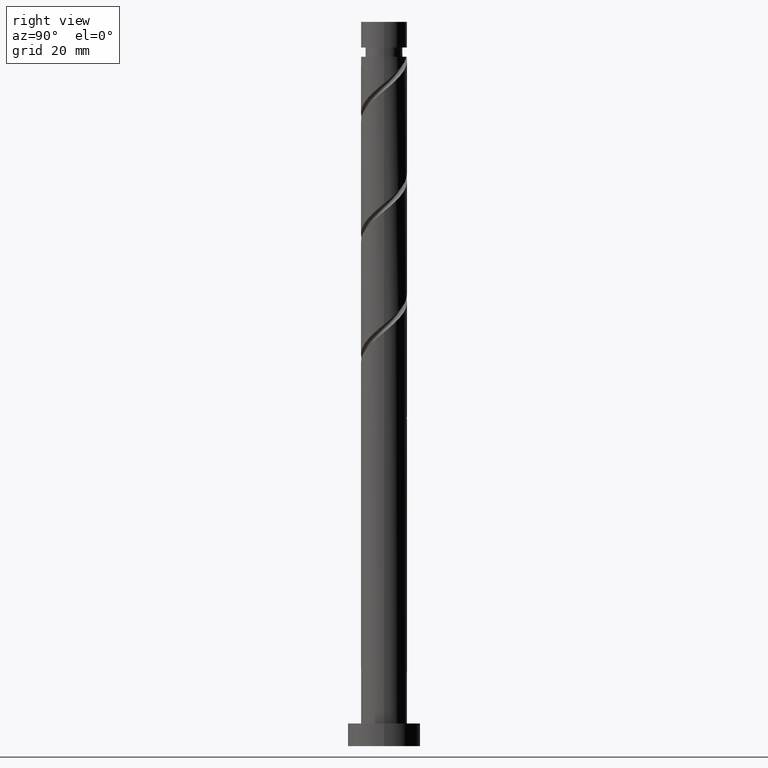
[diagram: clean part render]
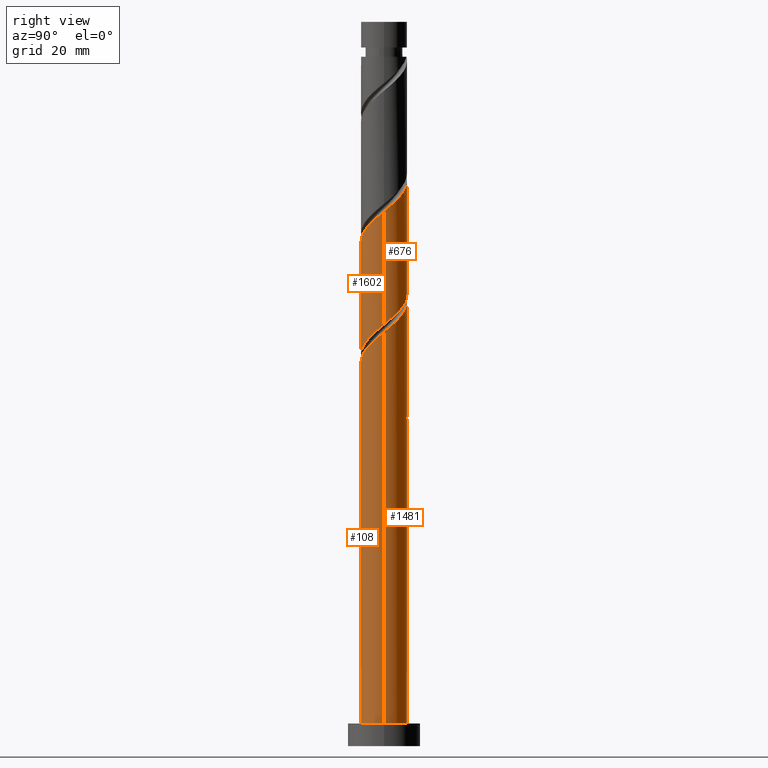
[diagram: same view with one multi-face feature highlighted, each face labeled with its STEP entity id]
A machine part, right view. The highlighted faces form ONE feature: a constant-radius fillet chain: 4 tangent blend faces with common blend radius 5.1 mm. The faces share edges in the B-rep.
Their STEP definitions:
[1] entity #676 (Cylinder):
#7 = CARTESIAN_POINT ( 'NONE',  ( 3.693490123188847729, 3.592466363838562327, 121.3970712016373454 ) ) ;
#20 = CARTESIAN_POINT ( 'NONE',  ( -4.967940086286696477, 1.153070379060097128, 130.4879802925464674 ) ) ;
#25 = ORIENTED_EDGE ( 'NONE', *, *, #1310, .F. ) ;
#29 = CARTESIAN_POINT ( 'NONE',  ( 5.100000000000005862, 3.305457375472709863E-15, 118.1233742980940917 ) ) ;
#49 = CARTESIAN_POINT ( 'NONE',  ( -2.381876442926736281, 4.509619120350490284, 126.8516166561828271 ) ) ;
#64 = DIRECTION ( 'NONE',  ( -0.000000000000000000, -0.000000000000000000, -1.000000000000000000 ) ) ;
#78 = EDGE_CURVE ( 'NONE', #1302, #1409, #664, .T. ) ;
#81 = CARTESIAN_POINT ( 'NONE',  ( 3.030261786617840070, 4.167156988879663793, 97.15464695921313876 ) ) ;
#89 = CARTESIAN_POINT ( 'NONE',  ( -4.802694060801206533, 1.715846659333174040, 105.0334348380009999 ) ) ;
#90 = CYLINDRICAL_SURFACE ( 'NONE', #693, 5.099999999999999645 ) ;
#97 = CARTESIAN_POINT ( 'NONE',  ( 0.2962832724618764124, 5.143918748178693434, 99.57888938345556085 ) ) ;
#115 = CARTESIAN_POINT ( 'NONE',  ( 5.099999999999997868, -5.892987357177625303E-15, 93.15561659002915462 ) ) ;
#174 = CARTESIAN_POINT ( 'NONE',  ( 5.100000000000005862, 0.1467551852714993887, 118.2454723028122743 ) ) ;
#214 = CARTESIAN_POINT ( 'NONE',  ( -2.531763087263166678, 4.487522650124081913, 102.0031318076979971 ) ) ;
#263 = CARTESIAN_POINT ( 'NONE',  ( 4.555992555365316221, 2.406369817974962633, 120.1849499895161415 ) ) ;
#299 = CARTESIAN_POINT ( 'NONE',  ( -5.100000000000005862, -3.544766506728652250E-15, 131.4567076314274061 ) ) ;
#335 = VECTOR ( 'NONE', #64, 1000.000000000000000 ) ;
#354 = CARTESIAN_POINT ( 'NONE',  ( 4.081538685709031888, 3.144634449735860926, 95.94252574709193482 ) ) ;
#404 = CARTESIAN_POINT ( 'NONE',  ( -5.100000000000004974, 0.5840975296641316428, 130.9707476784560640 ) ) ;
#411 = CARTESIAN_POINT ( 'NONE',  ( -1.733491099235630939, 4.852081251821313224, 126.2455560501222180 ) ) ;
#443 = EDGE_CURVE ( 'NONE', #881, #1409, #1309, .T. ) ;
#455 = CARTESIAN_POINT ( 'NONE',  ( -5.049395566237104838, 1.025323500691385892, 105.6394954440616232 ) ) ;
#467 = CARTESIAN_POINT ( 'NONE',  ( -3.112626605226002319, 4.039994506981321010, 102.6091924137585778 ) ) ;
#476 = CARTESIAN_POINT ( 'NONE',  ( 2.381876442926734505, 4.509619120350484067, 97.76070756527374783 ) ) ;
#481 = CARTESIAN_POINT ( 'NONE',  ( -5.099999999999999645, 0.000000000000000000, 160.0000000000000000 ) ) ;
#492 =( BOUNDED_CURVE ( )  B_SPLINE_CURVE ( 2, ( #29, #174, #891, #1275, #1566, #263, #1012, #7, #538, #1027, #784, #1295, #1305, #519, #1315, #411, #49, #1428, #1018, #1438, #1187, #1412, #20, #404, #299 ),
 .UNSPECIFIED., .F., .T. ) 
 B_SPLINE_CURVE_WITH_KNOTS ( ( 3, 2, 2, 2, 2, 2, 2, 2, 2, 2, 2, 2, 3 ),
 ( 0.4295252162417513841, 0.4318181818181817677, 0.4431818181818182323, 0.4545454545454545858, 0.4659090909090909394, 0.4772727272727272929, 0.4886363636363636465, 0.5000000000000000000, 0.5113636363636363535, 0.5227272727272727071, 0.5340909090909091717, 0.5454545454545454142, 0.5545252162417513286 ),
 .UNSPECIFIED. ) 
 CURVE ( )  GEOMETRIC_REPRESENTATION_ITEM ( )  RATIONAL_B_SPLINE_CURVE ( ( 0.9061101570135599026, 0.9072237824201421219, 0.9090909090909194967, 0.8998376744372218461, 0.9090909090909194967, 0.8998376744372218461, 0.9090909090909194967, 0.8998376744372218461, 0.9090909090909194967, 0.8998376744372218461, 0.9090909090909194967, 0.8998376744372218461, 0.9090909090909194967, 0.8998376744372218461, 0.9090909090909194967, 0.8998376744372218461, 0.9090909090909194967, 0.8998376744372218461, 0.9090909090909194967, 0.8998376744372218461, 0.9090909090909194967, 0.8998376744372218461, 0.9090909090909194967, 0.9017048011079993319, 0.9061101570135599026 ) ) 
 REPRESENTATION_ITEM ( '' )  );
#519 = CARTESIAN_POINT ( 'NONE',  ( -0.2962832724618752467, 5.143918748178697875, 125.0334348380009999 ) ) ;
#538 = CARTESIAN_POINT ( 'NONE',  ( 3.112626605226006760, 4.039994506981325451, 122.0031318076979829 ) ) ;
#582 = CARTESIAN_POINT ( 'NONE',  ( 4.967940086286690260, 1.153070379060092687, 94.12434392891007917 ) ) ;
#598 = DIRECTION ( 'NONE',  ( -1.000000000000000000, 0.000000000000000000, 0.000000000000000000 ) ) ;
#614 = LINE ( 'NONE', #481, #1350 ) ;
#656 = ORIENTED_EDGE ( 'NONE', *, *, #1069, .F. ) ;
#664 =( BOUNDED_CURVE ( )  B_SPLINE_CURVE ( 2, ( #1482, #1613, #1230, #455, #89, #1490, #946, #1475, #467, #214, #722, #1225, #1238, #97, #1098, #1636, #476, #81, #1500, #354, #1371, #745, #582, #1067, #115 ),
 .UNSPECIFIED., .F., .T. ) 
 B_SPLINE_CURVE_WITH_KNOTS ( ( 3, 2, 2, 2, 2, 2, 2, 2, 2, 2, 2, 2, 3 ),
 ( 0.6795252162417514397, 0.6818181818181817677, 0.6931818181818182323, 0.7045454545454545858, 0.7159090909090909394, 0.7272727272727272929, 0.7386363636363636465, 0.7500000000000000000, 0.7613636363636363535, 0.7727272727272727071, 0.7840909090909090606, 0.7954545454545454142, 0.8045252162417513286 ),
 .UNSPECIFIED. ) 
 CURVE ( )  GEOMETRIC_REPRESENTATION_ITEM ( )  RATIONAL_B_SPLINE_CURVE ( ( 0.9061101570135546845, 0.9072237824201367928, 0.9090909090909141677, 0.8998376744372164060, 0.9090909090909141677, 0.8998376744372164060, 0.9090909090909141677, 0.8998376744372164060, 0.9090909090909141677, 0.8998376744372164060, 0.9090909090909141677, 0.8998376744372164060, 0.9090909090909141677, 0.8998376744372164060, 0.9090909090909141677, 0.8998376744372164060, 0.9090909090909141677, 0.8998376744372164060, 0.9090909090909141677, 0.8998376744372164060, 0.9090909090909141677, 0.8998376744372164060, 0.9090909090909141677, 0.9017048011079938918, 0.9061101570135544625 ) ) 
 REPRESENTATION_ITEM ( '' )  );
#676 = ADVANCED_FACE ( 'NONE', ( #1099 ), #90, .T. ) ;
#693 = AXIS2_PLACEMENT_3D ( 'NONE', #1111, #948, #598 ) ;
#722 = CARTESIAN_POINT ( 'NONE',  ( -1.848345375122717460, 4.753274594872723746, 101.3970712016373739 ) ) ;
#745 = CARTESIAN_POINT ( 'NONE',  ( 4.802153594329293007, 1.867352329335633776, 94.73040453497071667 ) ) ;
#784 = CARTESIAN_POINT ( 'NONE',  ( 1.848345375122719680, 4.753274594872730852, 123.2152530198192011 ) ) ;
#881 = VERTEX_POINT ( 'NONE', #1489 ) ;
#891 = CARTESIAN_POINT ( 'NONE',  ( 5.091561072240601504, 0.2932675359534151482, 118.3667681713343285 ) ) ;
#946 = CARTESIAN_POINT ( 'NONE',  ( -4.124741339277075092, 2.999418090906761147, 103.8213136258797817 ) ) ;
#948 = DIRECTION ( 'NONE',  ( -0.000000000000000000, -0.000000000000000000, -1.000000000000000000 ) ) ;
#1012 = CARTESIAN_POINT ( 'NONE',  ( 4.124741339277080421, 2.999418090906763368, 120.7910105955767648 ) ) ;
#1018 = CARTESIAN_POINT ( 'NONE',  ( -3.555900236163439310, 3.655895719307768132, 128.0637378683040311 ) ) ;
#1027 = CARTESIAN_POINT ( 'NONE',  ( 2.531763087263168899, 4.487522650124085466, 122.6091924137585636 ) ) ;
#1067 = CARTESIAN_POINT ( 'NONE',  ( 5.100000000000001421, 0.5840975296641219838, 93.64157654300048250 ) ) ;
#1069 = EDGE_CURVE ( 'NONE', #1102, #1302, #614, .T. ) ;
#1098 = CARTESIAN_POINT ( 'NONE',  ( 1.014887185848754259, 4.997999999999999332, 98.97282877739493756 ) ) ;
#1099 = FACE_OUTER_BOUND ( 'NONE', #1201, .T. ) ;
#1102 = VERTEX_POINT ( 'NONE', #1107 ) ;
#1107 = CARTESIAN_POINT ( 'NONE',  ( -5.100000000000005862, -3.544766506728652250E-15, 131.4567076314274061 ) ) ;
#1111 = CARTESIAN_POINT ( 'NONE',  ( 0.000000000000000000, 0.000000000000000000, 160.0000000000000000 ) ) ;
#1167 = CARTESIAN_POINT ( 'NONE',  ( -5.099999999999997868, 4.771225804415387008E-15, 106.4889499233624832 ) ) ;
#1187 = CARTESIAN_POINT ( 'NONE',  ( -4.441846140019166889, 2.505993389535752236, 129.2758590804252208 ) ) ;
#1201 = EDGE_LOOP ( 'NONE', ( #25, #1600, #1533, #656 ) ) ;
#1225 = CARTESIAN_POINT ( 'NONE',  ( -1.164927662982269352, 5.019026539621367355, 100.7910105955767790 ) ) ;
#1230 = CARTESIAN_POINT ( 'NONE',  ( -5.091561072240594399, 0.2932675359534164805, 106.2455560501222180 ) ) ;
#1238 = CARTESIAN_POINT ( 'NONE',  ( -0.4343221952601962199, 5.081472643900029063, 100.1849499895161557 ) ) ;
#1275 = CARTESIAN_POINT ( 'NONE',  ( 5.049395566237108390, 1.025323500691385448, 118.9728287773949091 ) ) ;
#1295 = CARTESIAN_POINT ( 'NONE',  ( 1.164927662982271572, 5.019026539621373573, 123.8213136258797675 ) ) ;
#1302 = VERTEX_POINT ( 'NONE', #1167 ) ;
#1305 = CARTESIAN_POINT ( 'NONE',  ( 0.4343221952601982183, 5.081472643900035280, 124.4273742319403766 ) ) ;
#1309 = LINE ( 'NONE', #1609, #335 ) ;
#1310 = EDGE_CURVE ( 'NONE', #881, #1102, #492, .T. ) ;
#1315 = CARTESIAN_POINT ( 'NONE',  ( -1.014887185848752260, 4.998000000000005549, 125.6394954440616090 ) ) ;
#1350 = VECTOR ( 'NONE', #1528, 1000.000000000000000 ) ;
#1371 = CARTESIAN_POINT ( 'NONE',  ( 4.441846140019162448, 2.505993389535748683, 95.33646514103131153 ) ) ;
#1409 = VERTEX_POINT ( 'NONE', #1595 ) ;
#1412 = CARTESIAN_POINT ( 'NONE',  ( -4.802153594329296560, 1.867352329335639105, 129.8819196864858156 ) ) ;
#1428 = CARTESIAN_POINT ( 'NONE',  ( -3.030261786617843178, 4.167156988879668233, 127.4576772622434078 ) ) ;
#1438 = CARTESIAN_POINT ( 'NONE',  ( -4.081538685709036329, 3.144634449735864923, 128.6697984743646543 ) ) ;
#1475 = CARTESIAN_POINT ( 'NONE',  ( -3.693490123188840624, 3.592466363838560550, 103.2152530198191869 ) ) ;
#1482 = CARTESIAN_POINT ( 'NONE',  ( -5.099999999999997868, 4.771225804415387797E-15, 106.4889499233624832 ) ) ;
#1489 = CARTESIAN_POINT ( 'NONE',  ( 5.100000000000005862, 3.305457375472709863E-15, 118.1233742980940775 ) ) ;
#1490 = CARTESIAN_POINT ( 'NONE',  ( -4.555992555365308228, 2.406369817974963077, 104.4273742319404192 ) ) ;
#1500 = CARTESIAN_POINT ( 'NONE',  ( 3.555900236163433981, 3.655895719307762359, 96.54858635315251547 ) ) ;
#1528 = DIRECTION ( 'NONE',  ( -0.000000000000000000, -0.000000000000000000, -1.000000000000000000 ) ) ;
#1533 = ORIENTED_EDGE ( 'NONE', *, *, #78, .F. ) ;
#1566 = CARTESIAN_POINT ( 'NONE',  ( 4.802694060801213638, 1.715846659333174484, 119.5788893834555466 ) ) ;
#1595 = CARTESIAN_POINT ( 'NONE',  ( 5.099999999999997868, -5.892987357177625303E-15, 93.15561659002914041 ) ) ;
#1600 = ORIENTED_EDGE ( 'NONE', *, *, #443, .T. ) ;
#1609 = CARTESIAN_POINT ( 'NONE',  ( 5.099999999999999645, 6.245698675651500839E-16, 160.0000000000000000 ) ) ;
#1613 = CARTESIAN_POINT ( 'NONE',  ( -5.099999999999997868, 0.1467551852715043292, 106.3668519186442722 ) ) ;
#1636 = CARTESIAN_POINT ( 'NONE',  ( 1.733491099235630495, 4.852081251821307895, 98.36676817133435691 ) ) ;
[2] entity #1602 (Cylinder):
#2 = EDGE_LOOP ( 'NONE', ( #388, #675, #294, #1149 ) ) ;
#64 = DIRECTION ( 'NONE',  ( -0.000000000000000000, -0.000000000000000000, -1.000000000000000000 ) ) ;
#67 = CARTESIAN_POINT ( 'NONE',  ( -5.100000000000005862, -3.544766506728652250E-15, 104.7900409647607205 ) ) ;
#84 = CARTESIAN_POINT ( 'NONE',  ( -2.531763087263170231, -4.487522650124083690, 109.2758590804252208 ) ) ;
#86 = CARTESIAN_POINT ( 'NONE',  ( -1.014887185848753592, -4.997999999999999332, 85.63949544406160896 ) ) ;
#101 = DIRECTION ( 'NONE',  ( -1.000000000000000000, 0.000000000000000000, 0.000000000000000000 ) ) ;
#112 = CARTESIAN_POINT ( 'NONE',  ( -4.441846140019162448, -2.505993389535748239, 82.00313180769796872 ) ) ;
#188 = CARTESIAN_POINT ( 'NONE',  ( 5.100000000000005862, 3.305457375472709863E-15, 118.1233742980940917 ) ) ;
#197 = CARTESIAN_POINT ( 'NONE',  ( -4.555992555365313557, -2.406369817974963965, 106.8516166561827987 ) ) ;
#200 = LINE ( 'NONE', #709, #719 ) ;
#210 = VERTEX_POINT ( 'NONE', #415 ) ;
#219 = CARTESIAN_POINT ( 'NONE',  ( -4.802694060801213638, -1.715846659333174928, 106.2455560501222038 ) ) ;
#239 = CARTESIAN_POINT ( 'NONE',  ( -3.030261786617840070, -4.167156988879664681, 83.82131362587981016 ) ) ;
#275 = CARTESIAN_POINT ( 'NONE',  ( 5.099999999999997868, -5.892987357177625303E-15, 93.15561659002915462 ) ) ;
#284 = EDGE_CURVE ( 'NONE', #1409, #1050, #1399, .T. ) ;
#294 = ORIENTED_EDGE ( 'NONE', *, *, #625, .T. ) ;
#300 = CARTESIAN_POINT ( 'NONE',  ( 4.124741339277075092, -2.999418090906761147, 90.48798029254642472 ) ) ;
#308 = CARTESIAN_POINT ( 'NONE',  ( 3.030261786617843178, -4.167156988879668233, 114.1243439289100934 ) ) ;
#321 = CARTESIAN_POINT ( 'NONE',  ( 4.967940086286696477, -1.153070379060097128, 117.1546469592131103 ) ) ;
#328 = CARTESIAN_POINT ( 'NONE',  ( 3.555900236163439310, -3.655895719307768132, 114.7304045349707025 ) ) ;
#330 = CARTESIAN_POINT ( 'NONE',  ( -2.381876442926734061, -4.509619120350484067, 84.42737423194039081 ) ) ;
#335 = VECTOR ( 'NONE', #64, 1000.000000000000000 ) ;
#358 = CARTESIAN_POINT ( 'NONE',  ( -5.099999999999997868, 4.771225804415387008E-15, 79.82228325669582603 ) ) ;
#388 = ORIENTED_EDGE ( 'NONE', *, *, #443, .F. ) ;
#415 = CARTESIAN_POINT ( 'NONE',  ( -5.100000000000005862, -3.544766506728652250E-15, 104.7900409647607205 ) ) ;
#421 = CARTESIAN_POINT ( 'NONE',  ( 5.099999999999998757, -0.1467551852714982230, 93.03351858531092944 ) ) ;
#443 = EDGE_CURVE ( 'NONE', #881, #1409, #1309, .T. ) ;
#594 = CARTESIAN_POINT ( 'NONE',  ( -4.124741339277079533, -2.999418090906764256, 107.4576772622434504 ) ) ;
#620 = CARTESIAN_POINT ( 'NONE',  ( -5.099999999999997868, 4.771225804415387008E-15, 79.82228325669582603 ) ) ;
#625 = EDGE_CURVE ( 'NONE', #210, #1050, #200, .T. ) ;
#628 = CARTESIAN_POINT ( 'NONE',  ( -5.100000000000000533, -0.5840975296641237602, 80.30824320966715391 ) ) ;
#661 = CARTESIAN_POINT ( 'NONE',  ( 4.555992555365308228, -2.406369817974962633, 91.09404089860707643 ) ) ;
#675 = ORIENTED_EDGE ( 'NONE', *, *, #1463, .F. ) ;
#703 = CARTESIAN_POINT ( 'NONE',  ( 2.381876442926735837, -4.509619120350491173, 113.5182833228494843 ) ) ;
#709 = CARTESIAN_POINT ( 'NONE',  ( -5.099999999999999645, 0.000000000000000000, 160.0000000000000000 ) ) ;
#719 = VECTOR ( 'NONE', #1209, 1000.000000000000000 ) ;
#725 = CARTESIAN_POINT ( 'NONE',  ( -1.848345375122721013, -4.753274594872729075, 109.8819196864858299 ) ) ;
#748 = CARTESIAN_POINT ( 'NONE',  ( 0.000000000000000000, 0.000000000000000000, 160.0000000000000000 ) ) ;
#803 = CARTESIAN_POINT ( 'NONE',  ( 3.112626605226001431, -4.039994506981321010, 89.27585908042522078 ) ) ;
#807 = CARTESIAN_POINT ( 'NONE',  ( 4.441846140019166889, -2.505993389535752236, 115.9425257470919206 ) ) ;
#814 = CARTESIAN_POINT ( 'NONE',  ( 1.733491099235630051, -4.852081251821313224, 112.9122227167888752 ) ) ;
#817 = CARTESIAN_POINT ( 'NONE',  ( 0.4343221952601947766, -5.081472643900029951, 86.85161665618281290 ) ) ;
#828 = CARTESIAN_POINT ( 'NONE',  ( 5.100000000000007638, -0.5840975296641219838, 117.6374143451227781 ) ) ;
#834 = CARTESIAN_POINT ( 'NONE',  ( -5.049395566237108390, -1.025323500691385892, 105.6394954440616090 ) ) ;
#881 = VERTEX_POINT ( 'NONE', #1489 ) ;
#922 = CARTESIAN_POINT ( 'NONE',  ( 0.2962832724618759683, -5.143918748178697875, 111.7001015046676571 ) ) ;
#941 = CARTESIAN_POINT ( 'NONE',  ( 1.014887185848752926, -4.998000000000005549, 112.3061621107282946 ) ) ;
#976 = CARTESIAN_POINT ( 'NONE',  ( -4.802153594329291231, -1.867352329335635774, 81.39707120163738807 ) ) ;
#980 =( BOUNDED_CURVE ( )  B_SPLINE_CURVE ( 2, ( #67, #1615, #1083, #834, #219, #197, #594, #1053, #1447, #84, #725, #1611, #1320, #922, #941, #814, #703, #308, #328, #1063, #807, #1462, #321, #828, #188 ),
 .UNSPECIFIED., .F., .T. ) 
 B_SPLINE_CURVE_WITH_KNOTS ( ( 3, 2, 2, 2, 2, 2, 2, 2, 2, 2, 2, 2, 3 ),
 ( 0.3045252162417514397, 0.3068181818181817677, 0.3181818181818182323, 0.3295454545454545858, 0.3409090909090909394, 0.3522727272727272929, 0.3636363636363636465, 0.3750000000000000000, 0.3863636363636363535, 0.3977272727272727071, 0.4090909090909090606, 0.4204545454545454142, 0.4295252162417513841 ),
 .UNSPECIFIED. ) 
 CURVE ( )  GEOMETRIC_REPRESENTATION_ITEM ( )  RATIONAL_B_SPLINE_CURVE ( ( 0.9061101570135600136, 0.9072237824201421219, 0.9090909090909194967, 0.8998376744372218461, 0.9090909090909194967, 0.8998376744372218461, 0.9090909090909194967, 0.8998376744372218461, 0.9090909090909194967, 0.8998376744372218461, 0.9090909090909194967, 0.8998376744372218461, 0.9090909090909194967, 0.8998376744372218461, 0.9090909090909194967, 0.8998376744372218461, 0.9090909090909194967, 0.8998376744372218461, 0.9090909090909194967, 0.8998376744372218461, 0.9090909090909194967, 0.8998376744372218461, 0.9090909090909194967, 0.9017048011079993319, 0.9061101570135599026 ) ) 
 REPRESENTATION_ITEM ( '' )  );
#1020 = CARTESIAN_POINT ( 'NONE',  ( 4.802694060801206533, -1.715846659333174262, 91.70010150466767129 ) ) ;
#1050 = VERTEX_POINT ( 'NONE', #358 ) ;
#1053 = CARTESIAN_POINT ( 'NONE',  ( -3.693490123188845509, -3.592466363838564103, 108.0637378683040026 ) ) ;
#1063 = CARTESIAN_POINT ( 'NONE',  ( 4.081538685709036329, -3.144634449735864923, 115.3364651410312973 ) ) ;
#1083 = CARTESIAN_POINT ( 'NONE',  ( -5.091561072240601504, -0.2932675359534157589, 105.0334348380009857 ) ) ;
#1088 = AXIS2_PLACEMENT_3D ( 'NONE', #748, #1514, #101 ) ;
#1103 = FACE_OUTER_BOUND ( 'NONE', #2, .T. ) ;
#1114 = CYLINDRICAL_SURFACE ( 'NONE', #1088, 5.099999999999999645 ) ;
#1149 = ORIENTED_EDGE ( 'NONE', *, *, #284, .F. ) ;
#1156 = CARTESIAN_POINT ( 'NONE',  ( 3.693490123188842400, -3.592466363838560550, 89.88191968648587249 ) ) ;
#1209 = DIRECTION ( 'NONE',  ( -0.000000000000000000, -0.000000000000000000, -1.000000000000000000 ) ) ;
#1264 = CARTESIAN_POINT ( 'NONE',  ( -3.555900236163435313, -3.655895719307761471, 83.21525301981917266 ) ) ;
#1287 = CARTESIAN_POINT ( 'NONE',  ( 5.049395566237104838, -1.025323500691386558, 92.30616211072829458 ) ) ;
#1309 = LINE ( 'NONE', #1609, #335 ) ;
#1320 = CARTESIAN_POINT ( 'NONE',  ( -0.4343221952601974967, -5.081472643900035280, 111.0940408986070480 ) ) ;
#1329 = CARTESIAN_POINT ( 'NONE',  ( -0.2962832724618777447, -5.143918748178693434, 86.24555605012226067 ) ) ;
#1399 =( BOUNDED_CURVE ( )  B_SPLINE_CURVE ( 2, ( #275, #421, #1439, #1287, #1020, #661, #300, #1156, #803, #1589, #1559, #1420, #817, #1329, #86, #1473, #330, #239, #1264, #1401, #112, #976, #1660, #628, #620 ),
 .UNSPECIFIED., .F., .T. ) 
 B_SPLINE_CURVE_WITH_KNOTS ( ( 3, 2, 2, 2, 2, 2, 2, 2, 2, 2, 2, 2, 3 ),
 ( 0.8045252162417513286, 0.8068181818181817677, 0.8181818181818182323, 0.8295454545454545858, 0.8409090909090909394, 0.8522727272727272929, 0.8636363636363636465, 0.8750000000000000000, 0.8863636363636363535, 0.8977272727272727071, 0.9090909090909090606, 0.9204545454545454142, 0.9295252162417513286 ),
 .UNSPECIFIED. ) 
 CURVE ( )  GEOMETRIC_REPRESENTATION_ITEM ( )  RATIONAL_B_SPLINE_CURVE ( ( 0.9061101570135544625, 0.9072237824201366818, 0.9090909090909141677, 0.8998376744372164060, 0.9090909090909141677, 0.8998376744372164060, 0.9090909090909141677, 0.8998376744372164060, 0.9090909090909141677, 0.8998376744372164060, 0.9090909090909141677, 0.8998376744372164060, 0.9090909090909141677, 0.8998376744372164060, 0.9090909090909141677, 0.8998376744372164060, 0.9090909090909141677, 0.8998376744372164060, 0.9090909090909141677, 0.8998376744372164060, 0.9090909090909141677, 0.8998376744372164060, 0.9090909090909141677, 0.9017048011079938918, 0.9061101570135544625 ) ) 
 REPRESENTATION_ITEM ( '' )  );
#1401 = CARTESIAN_POINT ( 'NONE',  ( -4.081538685709034553, -3.144634449735860038, 82.60919241375859201 ) ) ;
#1409 = VERTEX_POINT ( 'NONE', #1595 ) ;
#1420 = CARTESIAN_POINT ( 'NONE',  ( 1.164927662982270240, -5.019026539621367355, 87.45767726224347882 ) ) ;
#1439 = CARTESIAN_POINT ( 'NONE',  ( 5.091561072240594399, -0.2932675359534172022, 92.91222271678884681 ) ) ;
#1447 = CARTESIAN_POINT ( 'NONE',  ( -3.112626605226007204, -4.039994506981324562, 108.6697984743646401 ) ) ;
#1462 = CARTESIAN_POINT ( 'NONE',  ( 4.802153594329298336, -1.867352329335637995, 116.5485863531525155 ) ) ;
#1463 = EDGE_CURVE ( 'NONE', #210, #881, #980, .T. ) ;
#1473 = CARTESIAN_POINT ( 'NONE',  ( -1.733491099235629829, -4.852081251821307895, 85.03343483800099989 ) ) ;
#1489 = CARTESIAN_POINT ( 'NONE',  ( 5.100000000000005862, 3.305457375472709863E-15, 118.1233742980940775 ) ) ;
#1514 = DIRECTION ( 'NONE',  ( -0.000000000000000000, -0.000000000000000000, -1.000000000000000000 ) ) ;
#1559 = CARTESIAN_POINT ( 'NONE',  ( 1.848345375122717460, -4.753274594872723746, 88.06373786830401684 ) ) ;
#1589 = CARTESIAN_POINT ( 'NONE',  ( 2.531763087263165790, -4.487522650124081913, 88.66979847436466855 ) ) ;
#1595 = CARTESIAN_POINT ( 'NONE',  ( 5.099999999999997868, -5.892987357177625303E-15, 93.15561659002914041 ) ) ;
#1602 = ADVANCED_FACE ( 'NONE', ( #1103 ), #1114, .T. ) ;
#1609 = CARTESIAN_POINT ( 'NONE',  ( 5.099999999999999645, 6.245698675651500839E-16, 160.0000000000000000 ) ) ;
#1611 = CARTESIAN_POINT ( 'NONE',  ( -1.164927662982270684, -5.019026539621372685, 110.4879802925464389 ) ) ;
#1615 = CARTESIAN_POINT ( 'NONE',  ( -5.100000000000005862, -0.1467551852715033023, 104.9121389694789173 ) ) ;
#1660 = CARTESIAN_POINT ( 'NONE',  ( -4.967940086286689372, -1.153070379060094242, 80.79101059557676479 ) ) ;
[3] entity #1481 (Cylinder):
#39 = CARTESIAN_POINT ( 'NONE',  ( 4.802694060801213638, 1.715846659333174484, 92.91222271678890365 ) ) ;
#59 = CARTESIAN_POINT ( 'NONE',  ( 1.848345375122719680, 4.753274594872730852, 96.54858635315252968 ) ) ;
#92 = CARTESIAN_POINT ( 'NONE',  ( -4.124741339277075092, 2.999418090906761147, 77.15464695921312455 ) ) ;
#111 = CARTESIAN_POINT ( 'NONE',  ( 0.2962832724618764124, 5.143918748178693434, 72.91222271678890365 ) ) ;
#119 = CARTESIAN_POINT ( 'NONE',  ( -4.555992555365308228, 2.406369817974963077, 77.76070756527376204 ) ) ;
#124 = CARTESIAN_POINT ( 'NONE',  ( 5.100000000000005862, 3.305457375472709863E-15, 91.45670763142739190 ) ) ;
#143 = CARTESIAN_POINT ( 'NONE',  ( -1.733491099235630939, 4.852081251821313224, 72.91222271678886102 ) ) ;
#148 = DIRECTION ( 'NONE',  ( 1.000000000000000000, 0.000000000000000000, 0.000000000000000000 ) ) ;
#152 = CIRCLE ( 'NONE', #1286, 5.099999999999999645 ) ;
#156 = CARTESIAN_POINT ( 'NONE',  ( -5.099999999999999645, 0.000000000000000000, 5.000000000000000000 ) ) ;
#161 = EDGE_CURVE ( 'NONE', #888, #1270, #152, .T. ) ;
#162 = VERTEX_POINT ( 'NONE', #124 ) ;
#165 = VECTOR ( 'NONE', #1332, 1000.000000000000000 ) ;
#182 = CARTESIAN_POINT ( 'NONE',  ( -4.081538685709036329, 3.144634449735864923, 75.33646514103128311 ) ) ;
#196 = VERTEX_POINT ( 'NONE', #1023 ) ;
#200 = LINE ( 'NONE', #709, #719 ) ;
#210 = VERTEX_POINT ( 'NONE', #415 ) ;
#211 = DIRECTION ( 'NONE',  ( -0.000000000000000000, -0.000000000000000000, -1.000000000000000000 ) ) ;
#216 = CIRCLE ( 'NONE', #587, 5.099999999999999645 ) ;
#246 = CARTESIAN_POINT ( 'NONE',  ( -5.099999999999999645, 0.000000000000000000, 160.0000000000000000 ) ) ;
#270 = EDGE_LOOP ( 'NONE', ( #1493, #846, #1122, #866, #557, #1340, #1652, #1433 ) ) ;
#281 = CARTESIAN_POINT ( 'NONE',  ( -4.967940086286696477, 1.153070379060097128, 77.15464695921313876 ) ) ;
#289 = CARTESIAN_POINT ( 'NONE',  ( 5.100000000000005862, 3.305457375472709863E-15, 91.45670763142739190 ) ) ;
#314 = CARTESIAN_POINT ( 'NONE',  ( -3.030261786617843178, 4.167156988879668233, 100.7910105955767506 ) ) ;
#333 = CARTESIAN_POINT ( 'NONE',  ( -1.733491099235630939, 4.852081251821313224, 99.57888938345550400 ) ) ;
#358 = CARTESIAN_POINT ( 'NONE',  ( -5.099999999999997868, 4.771225804415387008E-15, 79.82228325669582603 ) ) ;
#375 = CARTESIAN_POINT ( 'NONE',  ( -5.049395566237104838, 1.025323500691385892, 78.97282877739495177 ) ) ;
#394 = CARTESIAN_POINT ( 'NONE',  ( -4.441846140019166889, 2.505993389535752236, 75.94252574709189219 ) ) ;
#415 = CARTESIAN_POINT ( 'NONE',  ( -5.100000000000005862, -3.544766506728652250E-15, 104.7900409647607205 ) ) ;
#420 = CARTESIAN_POINT ( 'NONE',  ( 3.112626605226006760, 4.039994506981325451, 95.33646514103131153 ) ) ;
#430 = CARTESIAN_POINT ( 'NONE',  ( -2.381876442926736281, 4.509619120350490284, 100.1849499895161415 ) ) ;
#436 = CARTESIAN_POINT ( 'NONE',  ( 0.000000000000000000, 0.000000000000000000, 160.0000000000000000 ) ) ;
#444 = CARTESIAN_POINT ( 'NONE',  ( -4.802153594329296560, 1.867352329335639105, 103.2152530198191869 ) ) ;
#457 = CARTESIAN_POINT ( 'NONE',  ( 0.4343221952601982183, 5.081472643900035280, 97.76070756527373362 ) ) ;
#462 = CARTESIAN_POINT ( 'NONE',  ( -0.4343221952601962199, 5.081472643900029063, 73.51828332284949852 ) ) ;
#470 = CARTESIAN_POINT ( 'NONE',  ( -5.100000000000005862, -3.544766506728652250E-15, 78.12337429809407752 ) ) ;
#502 = CARTESIAN_POINT ( 'NONE',  ( -5.091561072240594399, 0.2932675359534164805, 79.57888938345554664 ) ) ;
#529 = CARTESIAN_POINT ( 'NONE',  ( -3.030261786617843178, 4.167156988879668233, 74.12434392891009338 ) ) ;
#535 = VERTEX_POINT ( 'NONE', #940 ) ;
#545 =( BOUNDED_CURVE ( )  B_SPLINE_CURVE ( 2, ( #907, #143, #883, #529, #897, #182, #394, #685, #281, #916, #1154 ),
 .UNSPECIFIED., .F., .T. ) 
 B_SPLINE_CURVE_WITH_KNOTS ( ( 3, 2, 2, 2, 2, 3 ),
 ( 0.000000000000000000, 0.01136363636363635354, 0.02272727272727270709, 0.03409090909090906063, 0.04545454545454541417, 0.05452521624175139803 ),
 .UNSPECIFIED. ) 
 CURVE ( )  GEOMETRIC_REPRESENTATION_ITEM ( )  RATIONAL_B_SPLINE_CURVE ( ( 0.9090909090909194967, 0.8998376744372218461, 0.9090909090909194967, 0.8998376744372218461, 0.9090909090909194967, 0.8998376744372218461, 0.9090909090909194967, 0.8998376744372218461, 0.9090909090909194967, 0.9017048011079992209, 0.9061101570135599026 ) ) 
 REPRESENTATION_ITEM ( '' )  );
#550 = CARTESIAN_POINT ( 'NONE',  ( 4.124741339277080421, 2.999418090906763368, 94.12434392891010759 ) ) ;
#557 = ORIENTED_EDGE ( 'NONE', *, *, #1256, .F. ) ;
#587 = AXIS2_PLACEMENT_3D ( 'NONE', #875, #1487, #738 ) ;
#588 = EDGE_CURVE ( 'NONE', #162, #888, #1051, .T. ) ;
#601 = CARTESIAN_POINT ( 'NONE',  ( -0.2962832724618752467, 5.143918748178697875, 98.36676817133431427 ) ) ;
#625 = EDGE_CURVE ( 'NONE', #210, #1050, #200, .T. ) ;
#642 = CARTESIAN_POINT ( 'NONE',  ( -5.099999999999998757, 0.1467551852714972238, 79.70018525197761505 ) ) ;
#650 = CARTESIAN_POINT ( 'NONE',  ( 2.531763087263168899, 4.487522650124085466, 95.94252574709190640 ) ) ;
#677 = CARTESIAN_POINT ( 'NONE',  ( 5.091561072240601504, 0.2932675359534151482, 91.70010150466767129 ) ) ;
#685 = CARTESIAN_POINT ( 'NONE',  ( -4.802153594329296560, 1.867352329335639105, 76.54858635315252968 ) ) ;
#694 = CARTESIAN_POINT ( 'NONE',  ( -4.967940086286696477, 1.153070379060097128, 103.8213136258797959 ) ) ;
#709 = CARTESIAN_POINT ( 'NONE',  ( -5.099999999999999645, 0.000000000000000000, 160.0000000000000000 ) ) ;
#711 = CARTESIAN_POINT ( 'NONE',  ( -4.081538685709036329, 3.144634449735864923, 102.0031318076979971 ) ) ;
#718 =( BOUNDED_CURVE ( )  B_SPLINE_CURVE ( 2, ( #1124, #642, #502, #375, #847, #119, #92, #959, #1262, #1653, #1375, #841, #462, #111, #1494 ),
 .UNSPECIFIED., .F., .T. ) 
 B_SPLINE_CURVE_WITH_KNOTS ( ( 3, 2, 2, 2, 2, 2, 2, 3 ),
 ( 0.9295252162417513286, 0.9318181818181817677, 0.9431818181818182323, 0.9545454545454545858, 0.9659090909090909394, 0.9772727272727272929, 0.9886363636363636465, 1.000000000000000000 ),
 .UNSPECIFIED. ) 
 CURVE ( )  GEOMETRIC_REPRESENTATION_ITEM ( )  RATIONAL_B_SPLINE_CURVE ( ( 0.9061101570135544625, 0.9072237824201366818, 0.9090909090909141677, 0.8998376744372164060, 0.9090909090909141677, 0.8998376744372164060, 0.9090909090909141677, 0.8998376744372164060, 0.9090909090909141677, 0.8998376744372164060, 0.9090909090909141677, 0.8998376744372164060, 0.9090909090909141677, 0.8998376744372164060, 0.9090909090909141677 ) ) 
 REPRESENTATION_ITEM ( '' )  );
#719 = VECTOR ( 'NONE', #1209, 1000.000000000000000 ) ;
#738 = DIRECTION ( 'NONE',  ( -1.000000000000000000, 0.000000000000000000, 0.000000000000000000 ) ) ;
#757 = DIRECTION ( 'NONE',  ( -0.000000000000000000, -0.000000000000000000, -1.000000000000000000 ) ) ;
#772 = CARTESIAN_POINT ( 'NONE',  ( 4.555992555365316221, 2.406369817974962633, 93.51828332284948431 ) ) ;
#795 = CARTESIAN_POINT ( 'NONE',  ( 5.100000000000006750, 0.1467551852714940319, 91.57880563614560288 ) ) ;
#823 = CARTESIAN_POINT ( 'NONE',  ( -1.014887185848752260, 4.998000000000005549, 98.97282877739495177 ) ) ;
#824 =( BOUNDED_CURVE ( )  B_SPLINE_CURVE ( 2, ( #289, #795, #677, #1179, #39, #772, #550, #1035, #420, #650, #59, #1327, #457, #601, #823, #333, #430, #314, #1070, #711, #1470, #444, #694, #1335, #929 ),
 .UNSPECIFIED., .F., .T. ) 
 B_SPLINE_CURVE_WITH_KNOTS ( ( 3, 2, 2, 2, 2, 2, 2, 2, 2, 2, 2, 2, 3 ),
 ( 0.1795252162417513009, 0.1818181818181817677, 0.1931818181818182323, 0.2045454545454545858, 0.2159090909090909394, 0.2272727272727272929, 0.2386363636363636465, 0.2500000000000000000, 0.2613636363636363535, 0.2727272727272727071, 0.2840909090909090606, 0.2954545454545454142, 0.3045252162417514397 ),
 .UNSPECIFIED. ) 
 CURVE ( )  GEOMETRIC_REPRESENTATION_ITEM ( )  RATIONAL_B_SPLINE_CURVE ( ( 0.9061101570135599026, 0.9072237824201420109, 0.9090909090909194967, 0.8998376744372218461, 0.9090909090909194967, 0.8998376744372218461, 0.9090909090909194967, 0.8998376744372218461, 0.9090909090909194967, 0.8998376744372218461, 0.9090909090909194967, 0.8998376744372218461, 0.9090909090909194967, 0.8998376744372218461, 0.9090909090909194967, 0.8998376744372218461, 0.9090909090909194967, 0.8998376744372218461, 0.9090909090909194967, 0.8998376744372218461, 0.9090909090909194967, 0.8998376744372218461, 0.9090909090909194967, 0.9017048011079992209, 0.9061101570135600136 ) ) 
 REPRESENTATION_ITEM ( '' )  );
#841 = CARTESIAN_POINT ( 'NONE',  ( -1.164927662982269352, 5.019026539621367355, 74.12434392891012180 ) ) ;
#846 = ORIENTED_EDGE ( 'NONE', *, *, #588, .T. ) ;
#847 = CARTESIAN_POINT ( 'NONE',  ( -4.802694060801206533, 1.715846659333174040, 78.36676817133431427 ) ) ;
#866 = ORIENTED_EDGE ( 'NONE', *, *, #1208, .F. ) ;
#875 = CARTESIAN_POINT ( 'NONE',  ( 0.000000000000000000, 0.000000000000000000, 72.30616211072828037 ) ) ;
#883 = CARTESIAN_POINT ( 'NONE',  ( -2.381876442926736281, 4.509619120350490284, 73.51828332284949852 ) ) ;
#888 = VERTEX_POINT ( 'NONE', #1199 ) ;
#897 = CARTESIAN_POINT ( 'NONE',  ( -3.555900236163439310, 3.655895719307768132, 74.73040453497068825 ) ) ;
#907 = CARTESIAN_POINT ( 'NONE',  ( -1.014887185848752260, 4.998000000000005549, 72.30616211072826616 ) ) ;
#916 = CARTESIAN_POINT ( 'NONE',  ( -5.100000000000007638, 0.5840975296641214287, 77.63741434512274964 ) ) ;
#929 = CARTESIAN_POINT ( 'NONE',  ( -5.100000000000005862, -3.544766506728652250E-15, 104.7900409647607205 ) ) ;
#940 = CARTESIAN_POINT ( 'NONE',  ( -1.014887185848752260, 4.998000000000005549, 72.30616211072828037 ) ) ;
#959 = CARTESIAN_POINT ( 'NONE',  ( -3.693490123188840624, 3.592466363838560550, 76.54858635315252968 ) ) ;
#1023 = CARTESIAN_POINT ( 'NONE',  ( 1.014887185848754259, 4.998000000000000220, 72.30616211072828037 ) ) ;
#1035 = CARTESIAN_POINT ( 'NONE',  ( 3.693490123188847729, 3.592466363838562327, 94.73040453497070246 ) ) ;
#1050 = VERTEX_POINT ( 'NONE', #358 ) ;
#1051 = LINE ( 'NONE', #1059, #165 ) ;
#1059 = CARTESIAN_POINT ( 'NONE',  ( 5.099999999999999645, 6.245698675651500839E-16, 160.0000000000000000 ) ) ;
#1070 = CARTESIAN_POINT ( 'NONE',  ( -3.555900236163439310, 3.655895719307768132, 101.3970712016373596 ) ) ;
#1122 = ORIENTED_EDGE ( 'NONE', *, *, #161, .T. ) ;
#1124 = CARTESIAN_POINT ( 'NONE',  ( -5.099999999999997868, 4.771225804415387008E-15, 79.82228325669582603 ) ) ;
#1154 = CARTESIAN_POINT ( 'NONE',  ( -5.100000000000005862, -3.544766506728652250E-15, 78.12337429809407752 ) ) ;
#1179 = CARTESIAN_POINT ( 'NONE',  ( 5.049395566237108390, 1.025323500691385448, 92.30616211072826616 ) ) ;
#1196 = FACE_OUTER_BOUND ( 'NONE', #270, .T. ) ;
#1199 = CARTESIAN_POINT ( 'NONE',  ( 5.099999999999999645, 6.245698675651500839E-16, 5.000000000000000000 ) ) ;
#1208 = EDGE_CURVE ( 'NONE', #1544, #1270, #1386, .T. ) ;
#1209 = DIRECTION ( 'NONE',  ( -0.000000000000000000, -0.000000000000000000, -1.000000000000000000 ) ) ;
#1221 = DIRECTION ( 'NONE',  ( -1.000000000000000000, 0.000000000000000000, 0.000000000000000000 ) ) ;
#1256 = EDGE_CURVE ( 'NONE', #535, #1544, #545, .T. ) ;
#1260 = DIRECTION ( 'NONE',  ( 0.000000000000000000, 0.000000000000000000, 1.000000000000000000 ) ) ;
#1262 = CARTESIAN_POINT ( 'NONE',  ( -3.112626605226002319, 4.039994506981321010, 75.94252574709190640 ) ) ;
#1263 = AXIS2_PLACEMENT_3D ( 'NONE', #436, #211, #1221 ) ;
#1270 = VERTEX_POINT ( 'NONE', #156 ) ;
#1286 = AXIS2_PLACEMENT_3D ( 'NONE', #1408, #1260, #148 ) ;
#1327 = CARTESIAN_POINT ( 'NONE',  ( 1.164927662982271572, 5.019026539621373573, 97.15464695921315297 ) ) ;
#1332 = DIRECTION ( 'NONE',  ( -0.000000000000000000, -0.000000000000000000, -1.000000000000000000 ) ) ;
#1335 = CARTESIAN_POINT ( 'NONE',  ( -5.100000000000008527, 0.5840975296641188752, 104.3040810117893926 ) ) ;
#1340 = ORIENTED_EDGE ( 'NONE', *, *, #1663, .T. ) ;
#1341 = CYLINDRICAL_SURFACE ( 'NONE', #1263, 5.099999999999999645 ) ;
#1375 = CARTESIAN_POINT ( 'NONE',  ( -1.848345375122717460, 4.753274594872723746, 74.73040453497067404 ) ) ;
#1378 = VECTOR ( 'NONE', #757, 1000.000000000000000 ) ;
#1380 = EDGE_CURVE ( 'NONE', #162, #210, #824, .T. ) ;
#1386 = LINE ( 'NONE', #246, #1378 ) ;
#1408 = CARTESIAN_POINT ( 'NONE',  ( 0.000000000000000000, 0.000000000000000000, 5.000000000000000000 ) ) ;
#1433 = ORIENTED_EDGE ( 'NONE', *, *, #625, .F. ) ;
#1470 = CARTESIAN_POINT ( 'NONE',  ( -4.441846140019166889, 2.505993389535752236, 102.6091924137585636 ) ) ;
#1481 = ADVANCED_FACE ( 'NONE', ( #1196 ), #1341, .T. ) ;
#1487 = DIRECTION ( 'NONE',  ( 0.000000000000000000, -0.000000000000000000, -1.000000000000000000 ) ) ;
#1493 = ORIENTED_EDGE ( 'NONE', *, *, #1380, .F. ) ;
#1494 = CARTESIAN_POINT ( 'NONE',  ( 1.014887185848754259, 4.997999999999999332, 72.30616211072828037 ) ) ;
#1544 = VERTEX_POINT ( 'NONE', #470 ) ;
#1569 = EDGE_CURVE ( 'NONE', #1050, #196, #718, .T. ) ;
#1652 = ORIENTED_EDGE ( 'NONE', *, *, #1569, .F. ) ;
#1653 = CARTESIAN_POINT ( 'NONE',  ( -2.531763087263166678, 4.487522650124081913, 75.33646514103131153 ) ) ;
#1663 = EDGE_CURVE ( 'NONE', #535, #196, #216, .T. ) ;
[4] entity #108 (Cylinder):
#5 = CARTESIAN_POINT ( 'NONE',  ( 5.100000000000006750, -0.5840975296641275349, 90.97074767845609244 ) ) ;
#57 = CARTESIAN_POINT ( 'NONE',  ( 5.100000000000005862, 3.305457375472709863E-15, 91.45670763142739190 ) ) ;
#91 = ORIENTED_EDGE ( 'NONE', *, *, #1208, .T. ) ;
#108 = ADVANCED_FACE ( 'NONE', ( #1110 ), #1269, .T. ) ;
#121 = CARTESIAN_POINT ( 'NONE',  ( -1.164927662982270684, -5.019026539621372685, 83.82131362587976753 ) ) ;
#124 = CARTESIAN_POINT ( 'NONE',  ( 5.100000000000005862, 3.305457375472709863E-15, 91.45670763142739190 ) ) ;
#156 = CARTESIAN_POINT ( 'NONE',  ( -5.099999999999999645, 0.000000000000000000, 5.000000000000000000 ) ) ;
#162 = VERTEX_POINT ( 'NONE', #124 ) ;
#165 = VECTOR ( 'NONE', #1332, 1000.000000000000000 ) ;
#172 = EDGE_CURVE ( 'NONE', #1270, #888, #206, .T. ) ;
#206 = CIRCLE ( 'NONE', #1337, 5.099999999999999645 ) ;
#246 = CARTESIAN_POINT ( 'NONE',  ( -5.099999999999999645, 0.000000000000000000, 160.0000000000000000 ) ) ;
#253 = CARTESIAN_POINT ( 'NONE',  ( -1.848345375122721013, -4.753274594872729075, 83.21525301981917266 ) ) ;
#357 = CARTESIAN_POINT ( 'NONE',  ( -4.555992555365313557, -2.406369817974963965, 80.18494998951614150 ) ) ;
#365 = CARTESIAN_POINT ( 'NONE',  ( -5.049395566237108390, -1.025323500691385892, 78.97282877739496598 ) ) ;
#377 = CARTESIAN_POINT ( 'NONE',  ( 0.2962832724618759683, -5.143918748178697875, 85.03343483800099989 ) ) ;
#379 =( BOUNDED_CURVE ( )  B_SPLINE_CURVE ( 2, ( #739, #985, #1516, #365, #1392, #357, #511, #857, #1385, #756, #253, #121, #992, #377, #1144, #682, #449, #701, #435, #392, #1202, #558, #1319, #5, #57 ),
 .UNSPECIFIED., .F., .T. ) 
 B_SPLINE_CURVE_WITH_KNOTS ( ( 3, 2, 2, 2, 2, 2, 2, 2, 2, 2, 2, 2, 3 ),
 ( 0.05452521624175139803, 0.05681818181818176772, 0.06818181818181823228, 0.07954545454545458583, 0.09090909090909093937, 0.1022727272727272929, 0.1136363636363636465, 0.1250000000000000000, 0.1363636363636363535, 0.1477272727272727071, 0.1590909090909090606, 0.1704545454545454142, 0.1795252162417513009 ),
 .UNSPECIFIED. ) 
 CURVE ( )  GEOMETRIC_REPRESENTATION_ITEM ( )  RATIONAL_B_SPLINE_CURVE ( ( 0.9061101570135599026, 0.9072237824201421219, 0.9090909090909194967, 0.8998376744372218461, 0.9090909090909194967, 0.8998376744372218461, 0.9090909090909194967, 0.8998376744372218461, 0.9090909090909194967, 0.8998376744372218461, 0.9090909090909194967, 0.8998376744372218461, 0.9090909090909194967, 0.8998376744372218461, 0.9090909090909194967, 0.8998376744372218461, 0.9090909090909194967, 0.8998376744372218461, 0.9090909090909194967, 0.8998376744372218461, 0.9090909090909194967, 0.8998376744372218461, 0.9090909090909194967, 0.9017048011079993319, 0.9061101570135599026 ) ) 
 REPRESENTATION_ITEM ( '' )  );
#382 = DIRECTION ( 'NONE',  ( 1.000000000000000000, 0.000000000000000000, 0.000000000000000000 ) ) ;
#392 = CARTESIAN_POINT ( 'NONE',  ( 4.081538685709036329, -3.144634449735864923, 88.66979847436466855 ) ) ;
#397 = DIRECTION ( 'NONE',  ( -1.000000000000000000, 0.000000000000000000, 0.000000000000000000 ) ) ;
#424 = EDGE_CURVE ( 'NONE', #1544, #162, #379, .T. ) ;
#435 = CARTESIAN_POINT ( 'NONE',  ( 3.555900236163439310, -3.655895719307768132, 88.06373786830403105 ) ) ;
#449 = CARTESIAN_POINT ( 'NONE',  ( 2.381876442926735837, -4.509619120350491173, 86.85161665618281290 ) ) ;
#470 = CARTESIAN_POINT ( 'NONE',  ( -5.100000000000005862, -3.544766506728652250E-15, 78.12337429809407752 ) ) ;
#497 = CARTESIAN_POINT ( 'NONE',  ( 0.000000000000000000, 0.000000000000000000, 160.0000000000000000 ) ) ;
#507 = CARTESIAN_POINT ( 'NONE',  ( 0.000000000000000000, 0.000000000000000000, 5.000000000000000000 ) ) ;
#511 = CARTESIAN_POINT ( 'NONE',  ( -4.124741339277079533, -2.999418090906764256, 80.79101059557676479 ) ) ;
#558 = CARTESIAN_POINT ( 'NONE',  ( 4.802153594329298336, -1.867352329335637995, 89.88191968648588670 ) ) ;
#588 = EDGE_CURVE ( 'NONE', #162, #888, #1051, .T. ) ;
#682 = CARTESIAN_POINT ( 'NONE',  ( 1.733491099235630051, -4.852081251821313224, 86.24555605012220383 ) ) ;
#701 = CARTESIAN_POINT ( 'NONE',  ( 3.030261786617843178, -4.167156988879668233, 87.45767726224339356 ) ) ;
#729 = ORIENTED_EDGE ( 'NONE', *, *, #424, .F. ) ;
#739 = CARTESIAN_POINT ( 'NONE',  ( -5.100000000000005862, -3.544766506728652250E-15, 78.12337429809407752 ) ) ;
#756 = CARTESIAN_POINT ( 'NONE',  ( -2.531763087263170231, -4.487522650124083690, 82.60919241375856359 ) ) ;
#757 = DIRECTION ( 'NONE',  ( -0.000000000000000000, -0.000000000000000000, -1.000000000000000000 ) ) ;
#857 = CARTESIAN_POINT ( 'NONE',  ( -3.693490123188845509, -3.592466363838564103, 81.39707120163735965 ) ) ;
#888 = VERTEX_POINT ( 'NONE', #1199 ) ;
#985 = CARTESIAN_POINT ( 'NONE',  ( -5.100000000000005862, -0.1467551852715006655, 78.24547230281228849 ) ) ;
#992 = CARTESIAN_POINT ( 'NONE',  ( -0.4343221952601974967, -5.081472643900035280, 84.42737423194039081 ) ) ;
#1033 = EDGE_LOOP ( 'NONE', ( #1391, #729, #91, #1133 ) ) ;
#1051 = LINE ( 'NONE', #1059, #165 ) ;
#1059 = CARTESIAN_POINT ( 'NONE',  ( 5.099999999999999645, 6.245698675651500839E-16, 160.0000000000000000 ) ) ;
#1110 = FACE_OUTER_BOUND ( 'NONE', #1033, .T. ) ;
#1120 = DIRECTION ( 'NONE',  ( -0.000000000000000000, -0.000000000000000000, -1.000000000000000000 ) ) ;
#1133 = ORIENTED_EDGE ( 'NONE', *, *, #172, .T. ) ;
#1144 = CARTESIAN_POINT ( 'NONE',  ( 1.014887185848752926, -4.998000000000005549, 85.63949544406163739 ) ) ;
#1183 = AXIS2_PLACEMENT_3D ( 'NONE', #497, #1120, #397 ) ;
#1199 = CARTESIAN_POINT ( 'NONE',  ( 5.099999999999999645, 6.245698675651500839E-16, 5.000000000000000000 ) ) ;
#1202 = CARTESIAN_POINT ( 'NONE',  ( 4.441846140019166889, -2.505993389535752236, 89.27585908042526341 ) ) ;
#1208 = EDGE_CURVE ( 'NONE', #1544, #1270, #1386, .T. ) ;
#1269 = CYLINDRICAL_SURFACE ( 'NONE', #1183, 5.099999999999999645 ) ;
#1270 = VERTEX_POINT ( 'NONE', #156 ) ;
#1319 = CARTESIAN_POINT ( 'NONE',  ( 4.967940086286696477, -1.153070379060097128, 90.48798029254645314 ) ) ;
#1332 = DIRECTION ( 'NONE',  ( -0.000000000000000000, -0.000000000000000000, -1.000000000000000000 ) ) ;
#1337 = AXIS2_PLACEMENT_3D ( 'NONE', #507, #1532, #382 ) ;
#1378 = VECTOR ( 'NONE', #757, 1000.000000000000000 ) ;
#1385 = CARTESIAN_POINT ( 'NONE',  ( -3.112626605226007204, -4.039994506981324562, 82.00313180769799715 ) ) ;
#1386 = LINE ( 'NONE', #246, #1378 ) ;
#1391 = ORIENTED_EDGE ( 'NONE', *, *, #588, .F. ) ;
#1392 = CARTESIAN_POINT ( 'NONE',  ( -4.802694060801213638, -1.715846659333174928, 79.57888938345553242 ) ) ;
#1516 = CARTESIAN_POINT ( 'NONE',  ( -5.091561072240601504, -0.2932675359534157589, 78.36676817133434270 ) ) ;
#1532 = DIRECTION ( 'NONE',  ( 0.000000000000000000, 0.000000000000000000, 1.000000000000000000 ) ) ;
#1544 = VERTEX_POINT ( 'NONE', #470 ) ;